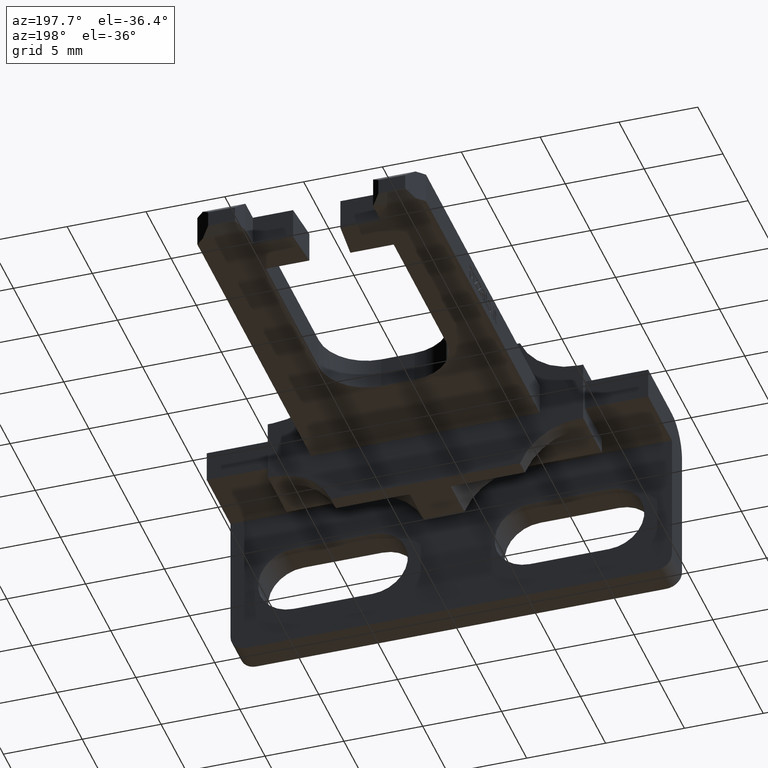
[diagram: clean part render]
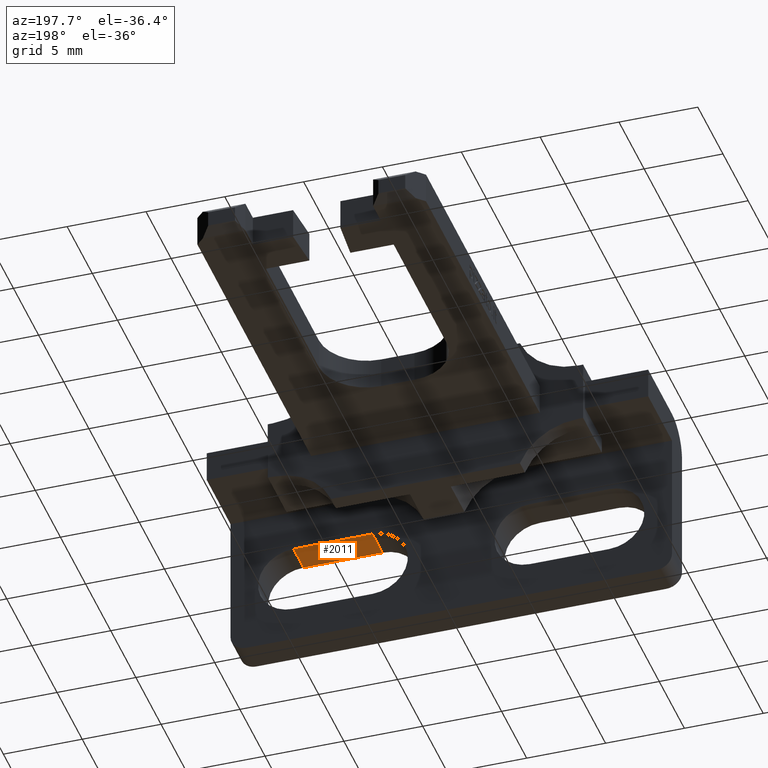
[diagram: same view with one face highlighted and labeled with its STEP entity id]
A machine part, auxiliary view. The second image highlights one B-rep face of the part: STEP entity #2011.
In plain terms, the highlighted planar face has unit normal (0, 0, -1).
Its self-contained STEP definition (entity closure, byte-faithful):
#1944=CARTESIAN_POINT('',(5.000000000000014,-2.018132E-014,6.750000000000000));
#1945=VERTEX_POINT('',#1944);
#1955=CARTESIAN_POINT('',(5.000000000000014,-2.000000000000020,6.749999999999989));
#1956=VERTEX_POINT('',#1955);
#1957=CARTESIAN_POINT('',(5.000000000000014,-2.000000000000020,6.749999999999989));
#1958=DIRECTION('',(0.0,1.0,0.0));
#1959=VECTOR('',#1958,2.000000000000002);
#1960=LINE('',#1957,#1959);
#1961=EDGE_CURVE('',#1956,#1945,#1960,.T.);
#1981=CARTESIAN_POINT('',(10.250000000000014,0.099999999999974,6.749999999999989));
#1982=DIRECTION('',(0.0,0.0,-1.0));
#1983=DIRECTION('',(0.0,-1.0,0.0));
#1984=AXIS2_PLACEMENT_3D('',#1981,#1982,#1983);
#1985=PLANE('',#1984);
#1986=CARTESIAN_POINT('',(10.000000000000014,-2.018132E-014,6.750000000000000));
#1987=VERTEX_POINT('',#1986);
#1988=CARTESIAN_POINT('',(10.000000000000014,-2.018132E-014,6.750000000000000));
#1989=DIRECTION('',(-1.0,0.0,0.0));
#1990=VECTOR('',#1989,5.000000000000002);
#1991=LINE('',#1988,#1990);
#1992=EDGE_CURVE('',#1987,#1945,#1991,.T.);
#1993=ORIENTED_EDGE('',*,*,#1992,.F.);
#1994=CARTESIAN_POINT('',(10.000000000000014,-2.000000000000020,6.749999999999989));
#1995=VERTEX_POINT('',#1994);
#1996=CARTESIAN_POINT('',(10.000000000000014,-2.000000000000020,6.749999999999989));
#1997=DIRECTION('',(0.0,1.0,0.0));
#1998=VECTOR('',#1997,2.000000000000002);
#1999=LINE('',#1996,#1998);
#2000=EDGE_CURVE('',#1995,#1987,#1999,.T.);
#2001=ORIENTED_EDGE('',*,*,#2000,.F.);
#2002=CARTESIAN_POINT('',(10.000000000000014,-2.000000000000020,6.749999999999989));
#2003=DIRECTION('',(-1.0,0.0,0.0));
#2004=VECTOR('',#2003,5.000000000000002);
#2005=LINE('',#2002,#2004);
#2006=EDGE_CURVE('',#1995,#1956,#2005,.T.);
#2007=ORIENTED_EDGE('',*,*,#2006,.T.);
#2008=ORIENTED_EDGE('',*,*,#1961,.T.);
#2009=EDGE_LOOP('',(#1993,#2001,#2007,#2008));
#2010=FACE_OUTER_BOUND('',#2009,.T.);
#2011=ADVANCED_FACE('',(#2010),#1985,.T.);